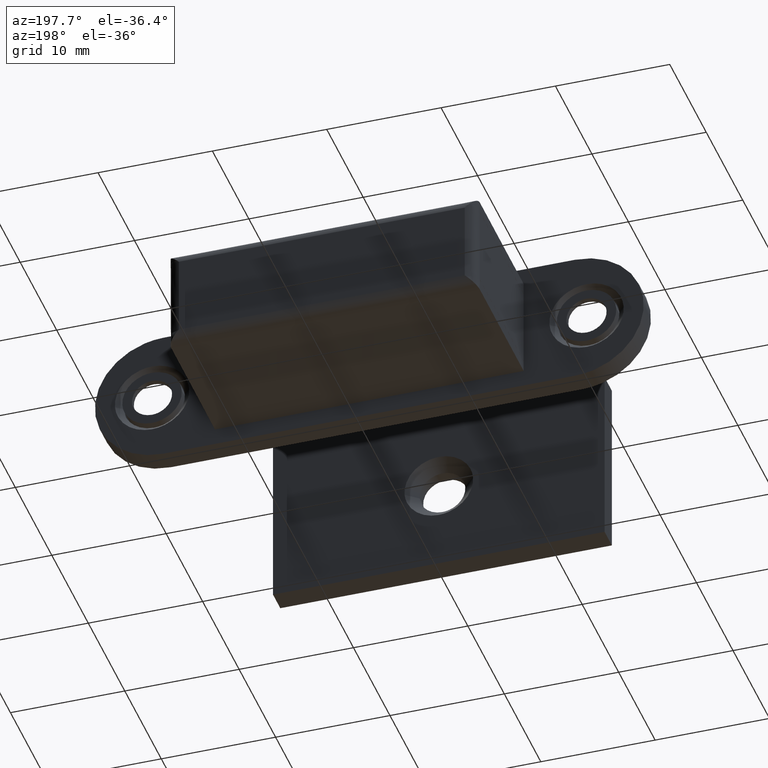
[diagram: clean part render]
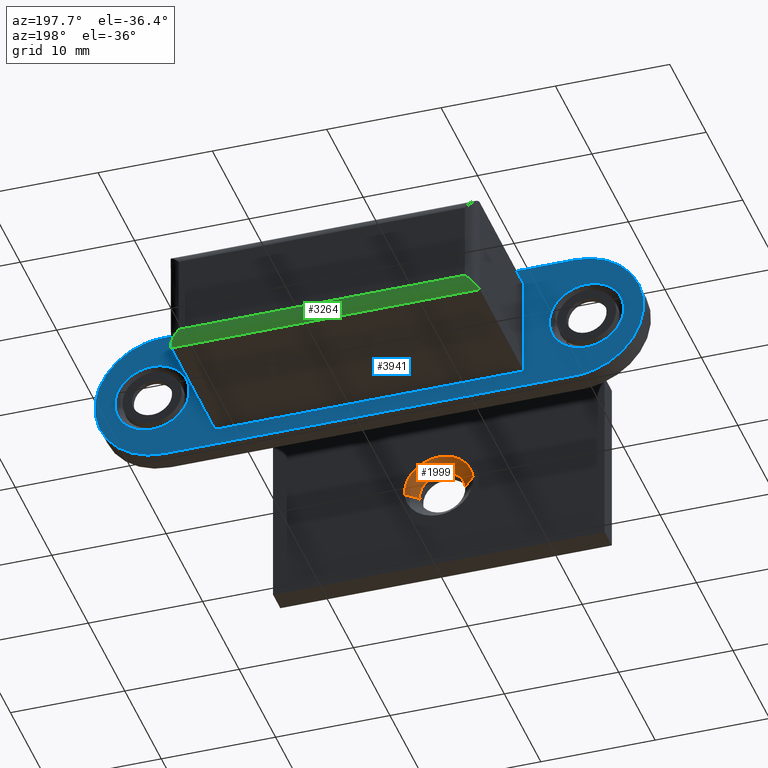
[diagram: same view with three faces highlighted in distinct colors, each labeled with its STEP entity id]
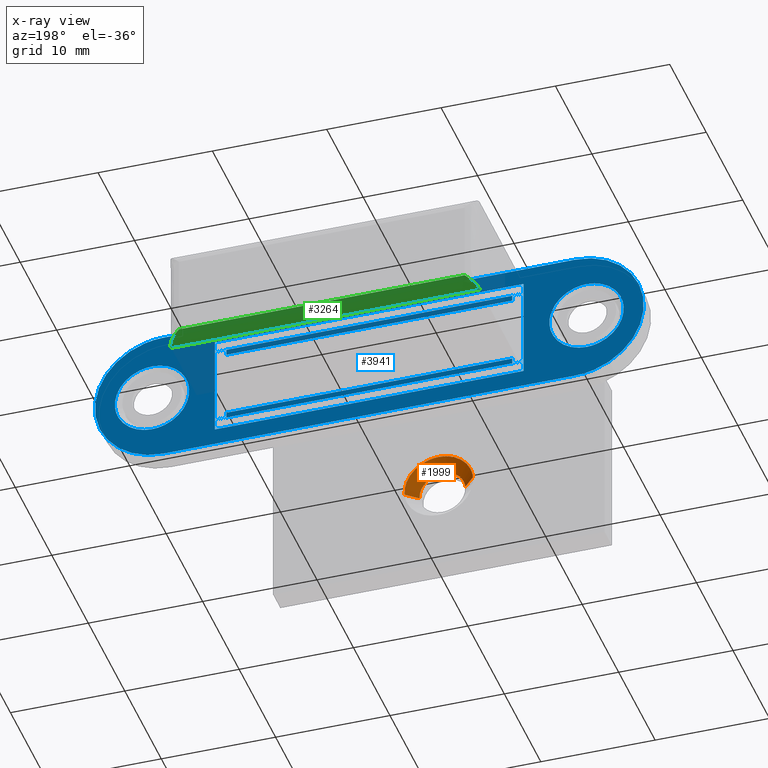
[diagram: x-ray of the same camera — body ghosted, the three highlighted faces saturated]
A machine part, auxiliary view with three faces highlighted in distinct colors.
The next image is the same camera in x-ray (body ghosted, the three faces saturated) — at least one of them is partly hidden behind the body in this view.
Their STEP definitions:

[orange] entity #1999 — the highlighted face is a freeform B-spline surface patch.
#1808=CARTESIAN_POINT('',(1.993834667469721,-33.044645065478193,-0.156918191520466));
#1809=VERTEX_POINT('',#1808);
#1823=CARTESIAN_POINT('',(2.990752001200863,-32.044645065483017,-0.235377287212060));
#1824=VERTEX_POINT('',#1823);
#1825=CARTESIAN_POINT('',(1.993834667469721,-33.044645065478193,-0.156918191520466));
#1826=CARTESIAN_POINT('',(2.990752001200863,-32.044645065483017,-0.235377287212060));
#1827=QUASI_UNIFORM_CURVE('',1,(#1825,#1826),.UNSPECIFIED.,.F.,.U.);
#1828=EDGE_CURVE('',#1809,#1824,#1827,.T.);
#1845=CARTESIAN_POINT('',(-2.990752001200863,-32.044645065483017,0.235377287212021));
#1846=VERTEX_POINT('',#1845);
#1862=CARTESIAN_POINT('',(-1.993834667469720,-33.044645065478193,0.156918191520426));
#1863=VERTEX_POINT('',#1862);
#1864=CARTESIAN_POINT('',(-1.993834667469720,-33.044645065478193,0.156918191520426));
#1865=CARTESIAN_POINT('',(-2.990752001200863,-32.044645065483017,0.235377287212021));
#1866=QUASI_UNIFORM_CURVE('',1,(#1864,#1865),.UNSPECIFIED.,.F.,.U.);
#1867=EDGE_CURVE('',#1863,#1846,#1866,.T.);
#1902=CARTESIAN_POINT('',(-1.968911734122953,-33.069645065486696,0.154956714062477));
#1903=CARTESIAN_POINT('',(-1.813955020060456,-33.069645065486704,2.123868448185431));
#1904=CARTESIAN_POINT('',(0.154956714062497,-33.069645065486696,1.968911734122933));
#1905=CARTESIAN_POINT('',(2.123868448185450,-33.069645065486704,1.813955020060437));
#1906=CARTESIAN_POINT('',(1.968911734122953,-33.069645065486696,-0.154956714062517));
#1907=CARTESIAN_POINT('',(-3.016298007876335,-32.019020065486693,0.237387801511546));
#1908=CARTESIAN_POINT('',(-2.778910206364770,-32.019020065486700,3.253685809387881));
#1909=CARTESIAN_POINT('',(0.237387801511566,-32.019020065486693,3.016298007876316));
#1910=CARTESIAN_POINT('',(3.253685809387900,-32.019020065486700,2.778910206364750));
#1911=CARTESIAN_POINT('',(3.016298007876335,-32.019020065486693,-0.237387801511586));
#1919=(BOUNDED_SURFACE()B_SPLINE_SURFACE(2,1,((#1902,#1907),(#1903,#1908),(#1904,#1909),(#1905,#1910),(#1906,#1911)),.UNSPECIFIED.,.F.,.F.,.U.)B_SPLINE_SURFACE_WITH_KNOTS((3,2,3),(2,2),(0.0,5.013019638620450,10.026039277240899),(0.0,1.0),.UNSPECIFIED.)GEOMETRIC_REPRESENTATION_ITEM()RATIONAL_B_SPLINE_SURFACE(((1.0,1.0),(0.707106781186548,0.707106781186548),(1.0,1.0),(0.707106781186548,0.707106781186548),(1.0,1.0)))REPRESENTATION_ITEM('')SURFACE());
#1920=CARTESIAN_POINT('',(1.996269596839024,-33.044645065486698,-0.122097079147318));
#1921=VERTEX_POINT('',#1920);
#1922=CARTESIAN_POINT('',(1.993834667469722,-33.044645065478193,-0.156918191520466));
#1923=CARTESIAN_POINT('',(1.995204071776316,-33.044645065482449,-0.139518259987268));
#1924=CARTESIAN_POINT('',(1.996269596839024,-33.044645065486698,-0.122097079147318));
#1932=(BOUNDED_CURVE()B_SPLINE_CURVE(2,(#1922,#1923,#1924),.UNSPECIFIED.,.F.,.U.)B_SPLINE_CURVE_WITH_KNOTS((3,3),(0.236331300627257,0.239332962235262),.UNSPECIFIED.)CURVE()GEOMETRIC_REPRESENTATION_ITEM()RATIONAL_B_SPLINE_CURVE((0.969723356160316,0.972855475552449,0.976072041658830))REPRESENTATION_ITEM(''));
#1933=EDGE_CURVE('',#1809,#1921,#1932,.T.);
#1934=ORIENTED_EDGE('',*,*,#1933,.T.);
#1935=CARTESIAN_POINT('',(0.0,-33.044645065486698,2.000000000000016));
#1936=VERTEX_POINT('',#1935);
#1937=CARTESIAN_POINT('',(1.996269596839024,-33.044645065486698,-0.122097079147318));
#1938=CARTESIAN_POINT('',(2.000000000000036,-33.044645065486698,-0.061105526636099));
#1939=CARTESIAN_POINT('',(2.000000000000035,-33.044645065486698,-1.967316E-014));
#1940=CARTESIAN_POINT('',(2.000000000000036,-33.044645065486698,2.000000000000016));
#1941=CARTESIAN_POINT('',(0.0,-33.044645065486698,2.000000000000016));
#1949=(BOUNDED_CURVE()B_SPLINE_CURVE(2,(#1937,#1938,#1939,#1940,#1941),.UNSPECIFIED.,.F.,.U.)B_SPLINE_CURVE_WITH_KNOTS((3,2,3),(0.239332962235262,0.250000000000000,0.500000000000000),.UNSPECIFIED.)CURVE()GEOMETRIC_REPRESENTATION_ITEM()RATIONAL_B_SPLINE_CURVE((0.976072041658830,0.987502787895525,1.0,0.707106781186547,1.0))REPRESENTATION_ITEM(''));
#1950=EDGE_CURVE('',#1921,#1936,#1949,.T.);
#1951=ORIENTED_EDGE('',*,*,#1950,.T.);
#1952=CARTESIAN_POINT('',(0.0,-33.044645065486698,2.000000000000016));
#1953=CARTESIAN_POINT('',(-1.848780983261075,-33.044645065482442,2.000000000000349));
#1954=CARTESIAN_POINT('',(-1.993834667469720,-33.044645065478193,0.156918191520426));
#1962=(BOUNDED_CURVE()B_SPLINE_CURVE(2,(#1952,#1953,#1954),.UNSPECIFIED.,.F.,.U.)B_SPLINE_CURVE_WITH_KNOTS((3,3),(0.500000000000000,0.736331300627257),.UNSPECIFIED.)CURVE()GEOMETRIC_REPRESENTATION_ITEM()RATIONAL_B_SPLINE_CURVE((1.0,0.723120658611652,0.969723356160317))REPRESENTATION_ITEM(''));
#1963=EDGE_CURVE('',#1936,#1863,#1962,.T.);
#1964=ORIENTED_EDGE('',*,*,#1963,.T.);
#1965=ORIENTED_EDGE('',*,*,#1867,.T.);
#1966=CARTESIAN_POINT('',(0.0,-32.044645065486698,3.000000000000016));
#1967=VERTEX_POINT('',#1966);
#1968=CARTESIAN_POINT('',(0.0,-32.044645065486698,3.000000000000016));
#1969=CARTESIAN_POINT('',(-2.773171474950244,-32.044645065484858,3.000000000000159));
#1970=CARTESIAN_POINT('',(-2.990752001200863,-32.044645065483024,0.235377287212021));
#1978=(BOUNDED_CURVE()B_SPLINE_CURVE(2,(#1968,#1969,#1970),.UNSPECIFIED.,.F.,.U.)B_SPLINE_CURVE_WITH_KNOTS((3,3),(0.500000000000000,0.736331300631150),.UNSPECIFIED.)CURVE()GEOMETRIC_REPRESENTATION_ITEM()RATIONAL_B_SPLINE_CURVE((1.0,0.723120658607091,0.969723356168441))REPRESENTATION_ITEM(''));
#1979=EDGE_CURVE('',#1967,#1846,#1978,.T.);
#1980=ORIENTED_EDGE('',*,*,#1979,.F.);
#1981=CARTESIAN_POINT('',(2.990752001200863,-32.044645065483024,-0.235377287212060));
#1982=CARTESIAN_POINT('',(3.000000000003633,-32.044645065483095,-0.117870321037486));
#1983=CARTESIAN_POINT('',(3.000000000003561,-32.044645065483166,-2.968043E-013));
#1984=CARTESIAN_POINT('',(3.000000000001729,-32.044645065485000,2.999999999999882));
#1985=CARTESIAN_POINT('',(0.0,-32.044645065486698,3.000000000000016));
#1993=(BOUNDED_CURVE()B_SPLINE_CURVE(2,(#1981,#1982,#1983,#1984,#1985),.UNSPECIFIED.,.F.,.U.)B_SPLINE_CURVE_WITH_KNOTS((3,2,3),(0.236331300631150,0.250000000000000,0.500000000000000),.UNSPECIFIED.)CURVE()GEOMETRIC_REPRESENTATION_ITEM()RATIONAL_B_SPLINE_CURVE((0.969723356168440,0.983986122579456,1.0,0.707106781186547,1.0))REPRESENTATION_ITEM(''));
#1994=EDGE_CURVE('',#1824,#1967,#1993,.T.);
#1995=ORIENTED_EDGE('',*,*,#1994,.F.);
#1996=ORIENTED_EDGE('',*,*,#1828,.F.);
#1997=EDGE_LOOP('',(#1934,#1951,#1964,#1965,#1980,#1995,#1996));
#1998=FACE_OUTER_BOUND('',#1997,.T.);
#1999=ADVANCED_FACE('',(#1998),#1919,.F.);

[blue] entity #3941 — the highlighted face is a freeform B-spline surface patch.
#2479=CARTESIAN_POINT('',(-15.760014665354641,-12.999999999967690,-0.254992061364810));
#2480=VERTEX_POINT('',#2479);
#2486=CARTESIAN_POINT('',(-18.999995999999999,-13.0,-3.249999999999905));
#2487=VERTEX_POINT('',#2486);
#2488=CARTESIAN_POINT('',(-18.999995999999999,-13.0,-3.249999999999905));
#2489=CARTESIAN_POINT('',(-15.995726902324346,-12.999999999983846,-3.250000000001172));
#2490=CARTESIAN_POINT('',(-15.760014665354639,-12.999999999967683,-0.254992061364810));
#2498=(BOUNDED_CURVE()B_SPLINE_CURVE(2,(#2488,#2489,#2490),.UNSPECIFIED.,.F.,.U.)B_SPLINE_CURVE_WITH_KNOTS((3,3),(0.0,0.236331300619710),.UNSPECIFIED.)CURVE()GEOMETRIC_REPRESENTATION_ITEM()RATIONAL_B_SPLINE_CURVE((1.0,0.723120658620494,0.969723356144566))REPRESENTATION_ITEM(''));
#2499=EDGE_CURVE('',#2487,#2480,#2498,.T.);
#2501=CARTESIAN_POINT('',(-22.239977334645360,-12.999999999967690,0.254992061364810));
#2502=VERTEX_POINT('',#2501);
#2503=CARTESIAN_POINT('',(-22.239977334645364,-12.999999999967683,0.254992061364810));
#2504=CARTESIAN_POINT('',(-22.249996000031540,-12.999999999968269,0.127692847901377));
#2505=CARTESIAN_POINT('',(-22.249996000030901,-12.999999999968910,2.439031E-012));
#2506=CARTESIAN_POINT('',(-22.249996000014793,-12.999999999985066,-3.249999999998734));
#2507=CARTESIAN_POINT('',(-18.999995999999999,-13.0,-3.249999999999905));
#2515=(BOUNDED_CURVE()B_SPLINE_CURVE(2,(#2503,#2504,#2505,#2506,#2507),.UNSPECIFIED.,.F.,.U.)B_SPLINE_CURVE_WITH_KNOTS((3,2,3),(0.736331300619710,0.750000000000000,1.0),.UNSPECIFIED.)CURVE()GEOMETRIC_REPRESENTATION_ITEM()RATIONAL_B_SPLINE_CURVE((0.969723356144566,0.983986122566053,1.0,0.707106781186548,1.0))REPRESENTATION_ITEM(''));
#2516=EDGE_CURVE('',#2502,#2487,#2515,.T.);
#2552=CARTESIAN_POINT('',(-18.999995999999999,-13.0,3.249999999999905));
#2553=VERTEX_POINT('',#2552);
#2554=CARTESIAN_POINT('',(-18.999995999999999,-13.0,3.249999999999905));
#2555=CARTESIAN_POINT('',(-22.004265097675660,-12.999999999983842,3.250000000001173));
#2556=CARTESIAN_POINT('',(-22.239977334645364,-12.999999999967683,0.254992061364810));
#2564=(BOUNDED_CURVE()B_SPLINE_CURVE(2,(#2554,#2555,#2556),.UNSPECIFIED.,.F.,.U.)B_SPLINE_CURVE_WITH_KNOTS((3,3),(0.500000000000000,0.736331300619710),.UNSPECIFIED.)CURVE()GEOMETRIC_REPRESENTATION_ITEM()RATIONAL_B_SPLINE_CURVE((1.0,0.723120658620494,0.969723356144566))REPRESENTATION_ITEM(''));
#2565=EDGE_CURVE('',#2553,#2502,#2564,.T.);
#2567=CARTESIAN_POINT('',(-15.760014665354639,-12.999999999967683,-0.254992061364810));
#2568=CARTESIAN_POINT('',(-15.749995999968466,-12.999999999968267,-0.127692847901377));
#2569=CARTESIAN_POINT('',(-15.749995999969100,-12.999999999968910,-2.439405E-012));
#2570=CARTESIAN_POINT('',(-15.749995999985206,-12.999999999985066,3.249999999998734));
#2571=CARTESIAN_POINT('',(-18.999995999999999,-13.0,3.249999999999905));
#2579=(BOUNDED_CURVE()B_SPLINE_CURVE(2,(#2567,#2568,#2569,#2570,#2571),.UNSPECIFIED.,.F.,.U.)B_SPLINE_CURVE_WITH_KNOTS((3,2,3),(0.236331300619710,0.250000000000000,0.500000000000000),.UNSPECIFIED.)CURVE()GEOMETRIC_REPRESENTATION_ITEM()RATIONAL_B_SPLINE_CURVE((0.969723356144566,0.983986122566053,1.0,0.707106781186548,1.0))REPRESENTATION_ITEM(''));
#2580=EDGE_CURVE('',#2480,#2553,#2579,.T.);
#2791=CARTESIAN_POINT('',(22.239981334645361,-12.999999999967690,-0.254992061364810));
#2792=VERTEX_POINT('',#2791);
#2798=CARTESIAN_POINT('',(19.0,-13.0,-3.249999999999905));
#2799=VERTEX_POINT('',#2798);
#2800=CARTESIAN_POINT('',(19.0,-13.0,-3.249999999999905));
#2801=CARTESIAN_POINT('',(22.004269097675660,-12.999999999983846,-3.250000000001172));
#2802=CARTESIAN_POINT('',(22.239981334645364,-12.999999999967692,-0.254992061364810));
#2810=(BOUNDED_CURVE()B_SPLINE_CURVE(2,(#2800,#2801,#2802),.UNSPECIFIED.,.F.,.U.)B_SPLINE_CURVE_WITH_KNOTS((3,3),(0.0,0.236331300619710),.UNSPECIFIED.)CURVE()GEOMETRIC_REPRESENTATION_ITEM()RATIONAL_B_SPLINE_CURVE((1.0,0.723120658620494,0.969723356144566))REPRESENTATION_ITEM(''));
#2811=EDGE_CURVE('',#2799,#2792,#2810,.T.);
#2813=CARTESIAN_POINT('',(15.760018665354639,-12.999999999967690,0.254992061364810));
#2814=VERTEX_POINT('',#2813);
#2815=CARTESIAN_POINT('',(15.760018665354636,-12.999999999967683,0.254992061364810));
#2816=CARTESIAN_POINT('',(15.749999999968466,-12.999999999968280,0.127692847901377));
#2817=CARTESIAN_POINT('',(15.749999999969100,-12.999999999968910,2.439031E-012));
#2818=CARTESIAN_POINT('',(15.749999999985201,-12.999999999985066,-3.249999999998734));
#2819=CARTESIAN_POINT('',(19.0,-13.0,-3.249999999999905));
#2827=(BOUNDED_CURVE()B_SPLINE_CURVE(2,(#2815,#2816,#2817,#2818,#2819),.UNSPECIFIED.,.F.,.U.)B_SPLINE_CURVE_WITH_KNOTS((3,2,3),(0.736331300619710,0.750000000000000,1.0),.UNSPECIFIED.)CURVE()GEOMETRIC_REPRESENTATION_ITEM()RATIONAL_B_SPLINE_CURVE((0.969723356144566,0.983986122566053,1.0,0.707106781186548,1.0))REPRESENTATION_ITEM(''));
#2828=EDGE_CURVE('',#2814,#2799,#2827,.T.);
#2864=CARTESIAN_POINT('',(19.0,-13.0,3.249999999999905));
#2865=VERTEX_POINT('',#2864);
#2866=CARTESIAN_POINT('',(19.0,-13.0,3.249999999999905));
#2867=CARTESIAN_POINT('',(15.995730902324338,-12.999999999983842,3.250000000001173));
#2868=CARTESIAN_POINT('',(15.760018665354636,-12.999999999967683,0.254992061364810));
#2876=(BOUNDED_CURVE()B_SPLINE_CURVE(2,(#2866,#2867,#2868),.UNSPECIFIED.,.F.,.U.)B_SPLINE_CURVE_WITH_KNOTS((3,3),(0.500000000000000,0.736331300619710),.UNSPECIFIED.)CURVE()GEOMETRIC_REPRESENTATION_ITEM()RATIONAL_B_SPLINE_CURVE((1.0,0.723120658620494,0.969723356144566))REPRESENTATION_ITEM(''));
#2877=EDGE_CURVE('',#2865,#2814,#2876,.T.);
#2879=CARTESIAN_POINT('',(22.239981334645364,-12.999999999967692,-0.254992061364810));
#2880=CARTESIAN_POINT('',(22.250000000031541,-12.999999999968278,-0.127692847901378));
#2881=CARTESIAN_POINT('',(22.250000000030902,-12.999999999968910,-2.439833E-012));
#2882=CARTESIAN_POINT('',(22.250000000014790,-12.999999999985066,3.249999999998734));
#2883=CARTESIAN_POINT('',(19.0,-13.0,3.249999999999905));
#2891=(BOUNDED_CURVE()B_SPLINE_CURVE(2,(#2879,#2880,#2881,#2882,#2883),.UNSPECIFIED.,.F.,.U.)B_SPLINE_CURVE_WITH_KNOTS((3,2,3),(0.236331300619710,0.250000000000000,0.500000000000000),.UNSPECIFIED.)CURVE()GEOMETRIC_REPRESENTATION_ITEM()RATIONAL_B_SPLINE_CURVE((0.969723356144566,0.983986122566053,1.0,0.707106781186548,1.0))REPRESENTATION_ITEM(''));
#2892=EDGE_CURVE('',#2792,#2865,#2891,.T.);
#3060=CARTESIAN_POINT('',(-13.500000000000000,-13.0,3.490000000000000));
#3061=VERTEX_POINT('',#3060);
#3074=CARTESIAN_POINT('',(-13.500000000000000,-13.0,-3.490000000000000));
#3075=VERTEX_POINT('',#3074);
#3081=CARTESIAN_POINT('',(-13.500000000000000,-13.0,-3.490000000000000));
#3082=CARTESIAN_POINT('',(-13.500000000000000,-13.0,3.490000000000000));
#3083=QUASI_UNIFORM_CURVE('',1,(#3081,#3082),.UNSPECIFIED.,.F.,.U.);
#3084=EDGE_CURVE('',#3075,#3061,#3083,.T.);
#3094=CARTESIAN_POINT('',(-13.500000000000000,-13.0,4.500000000000000));
#3095=VERTEX_POINT('',#3094);
#3110=CARTESIAN_POINT('',(-13.500000000000000,-13.0,3.500000000000000));
#3111=VERTEX_POINT('',#3110);
#3117=CARTESIAN_POINT('',(-13.500000000000000,-13.0,3.500000000000000));
#3118=CARTESIAN_POINT('',(-13.500000000000000,-13.0,4.500000000000000));
#3119=QUASI_UNIFORM_CURVE('',1,(#3117,#3118),.UNSPECIFIED.,.F.,.U.);
#3120=EDGE_CURVE('',#3111,#3095,#3119,.T.);
#3130=CARTESIAN_POINT('',(13.499995999999960,-13.0,-3.490000000000000));
#3131=VERTEX_POINT('',#3130);
#3146=CARTESIAN_POINT('',(13.499995999999960,-13.0,3.490000000000000));
#3147=VERTEX_POINT('',#3146);
#3153=CARTESIAN_POINT('',(13.499995999999960,-13.0,-3.490000000000000));
#3154=CARTESIAN_POINT('',(13.499995999999960,-13.0,3.490000000000000));
#3155=QUASI_UNIFORM_CURVE('',1,(#3153,#3154),.UNSPECIFIED.,.F.,.U.);
#3156=EDGE_CURVE('',#3131,#3147,#3155,.T.);
#3354=CARTESIAN_POINT('',(12.499995999999960,-13.0,3.490000000000000));
#3355=VERTEX_POINT('',#3354);
#3356=CARTESIAN_POINT('',(13.499995999999960,-13.0,3.490000000000000));
#3357=CARTESIAN_POINT('',(12.499995999999960,-13.0,3.490000000000000));
#3358=QUASI_UNIFORM_CURVE('',1,(#3356,#3357),.UNSPECIFIED.,.F.,.U.);
#3359=EDGE_CURVE('',#3147,#3355,#3358,.T.);
#3382=CARTESIAN_POINT('',(-12.500000000000000,-13.0,3.490000000000000));
#3383=VERTEX_POINT('',#3382);
#3397=CARTESIAN_POINT('',(-12.500000000000000,-13.0,3.490000000000000));
#3398=CARTESIAN_POINT('',(-13.500000000000000,-13.0,3.490000000000000));
#3399=QUASI_UNIFORM_CURVE('',1,(#3397,#3398),.UNSPECIFIED.,.F.,.U.);
#3400=EDGE_CURVE('',#3383,#3061,#3399,.T.);
#3418=CARTESIAN_POINT('',(12.499995999999960,-13.0,-3.490000000000000));
#3419=VERTEX_POINT('',#3418);
#3420=CARTESIAN_POINT('',(13.499995999999960,-13.0,-3.490000000000000));
#3421=CARTESIAN_POINT('',(12.499995999999960,-13.0,-3.490000000000000));
#3422=QUASI_UNIFORM_CURVE('',1,(#3420,#3421),.UNSPECIFIED.,.F.,.U.);
#3423=EDGE_CURVE('',#3131,#3419,#3422,.T.);
#3440=CARTESIAN_POINT('',(-12.500000000000000,-13.0,-3.490000000000000));
#3441=VERTEX_POINT('',#3440);
#3447=CARTESIAN_POINT('',(-12.500000000000000,-13.0,-3.490000000000000));
#3448=CARTESIAN_POINT('',(-13.500000000000000,-13.0,-3.490000000000000));
#3449=QUASI_UNIFORM_CURVE('',1,(#3447,#3448),.UNSPECIFIED.,.F.,.U.);
#3450=EDGE_CURVE('',#3441,#3075,#3449,.T.);
#3467=CARTESIAN_POINT('',(-12.500000000000000,-13.0,2.999992000000000));
#3468=VERTEX_POINT('',#3467);
#3469=CARTESIAN_POINT('',(-12.500000000000000,-13.0,3.490000000000000));
#3470=CARTESIAN_POINT('',(-12.500000000000000,-13.0,2.999992000000000));
#3471=QUASI_UNIFORM_CURVE('',1,(#3469,#3470),.UNSPECIFIED.,.F.,.U.);
#3472=EDGE_CURVE('',#3383,#3468,#3471,.T.);
#3480=CARTESIAN_POINT('',(-12.500000000000000,-13.0,-2.999992000000000));
#3481=VERTEX_POINT('',#3480);
#3487=CARTESIAN_POINT('',(-12.500000000000000,-13.0,-2.999992000000000));
#3488=CARTESIAN_POINT('',(-12.500000000000000,-13.0,-3.490000000000000));
#3489=QUASI_UNIFORM_CURVE('',1,(#3487,#3488),.UNSPECIFIED.,.F.,.U.);
#3490=EDGE_CURVE('',#3481,#3441,#3489,.T.);
#3506=CARTESIAN_POINT('',(12.499995999999960,-13.0,2.999992000000000));
#3507=VERTEX_POINT('',#3506);
#3508=CARTESIAN_POINT('',(12.499995999999960,-13.0,3.490000000000000));
#3509=CARTESIAN_POINT('',(12.499995999999960,-13.0,2.999992000000000));
#3510=QUASI_UNIFORM_CURVE('',1,(#3508,#3509),.UNSPECIFIED.,.F.,.U.);
#3511=EDGE_CURVE('',#3355,#3507,#3510,.T.);
#3520=CARTESIAN_POINT('',(12.499995999999960,-13.0,-2.999992000000000));
#3521=VERTEX_POINT('',#3520);
#3522=CARTESIAN_POINT('',(12.499995999999960,-13.0,-2.999992000000000));
#3523=CARTESIAN_POINT('',(12.499995999999960,-13.0,-3.490000000000000));
#3524=QUASI_UNIFORM_CURVE('',1,(#3522,#3523),.UNSPECIFIED.,.F.,.U.);
#3525=EDGE_CURVE('',#3521,#3419,#3524,.T.);
#3549=CARTESIAN_POINT('',(12.499995999999960,-13.0,-2.999992000000000));
#3550=CARTESIAN_POINT('',(-12.500000000000000,-13.0,-2.999992000000000));
#3551=QUASI_UNIFORM_CURVE('',1,(#3549,#3550),.UNSPECIFIED.,.F.,.U.);
#3552=EDGE_CURVE('',#3521,#3481,#3551,.T.);
#3563=CARTESIAN_POINT('',(12.499995999999960,-13.0,2.999992000000000));
#3564=CARTESIAN_POINT('',(-12.500000000000000,-13.0,2.999992000000000));
#3565=QUASI_UNIFORM_CURVE('',1,(#3563,#3564),.UNSPECIFIED.,.F.,.U.);
#3566=EDGE_CURVE('',#3507,#3468,#3565,.T.);
#3578=CARTESIAN_POINT('',(13.499995999999999,-13.0,3.500000000000000));
#3579=VERTEX_POINT('',#3578);
#3580=CARTESIAN_POINT('',(13.499995999999999,-13.0,3.500000000000000));
#3581=CARTESIAN_POINT('',(-13.500000000000000,-13.0,3.500000000000000));
#3582=QUASI_UNIFORM_CURVE('',1,(#3580,#3581),.UNSPECIFIED.,.F.,.U.);
#3583=EDGE_CURVE('',#3579,#3111,#3582,.T.);
#3629=CARTESIAN_POINT('',(-13.500000000000000,-13.0,-3.500000000000000));
#3630=VERTEX_POINT('',#3629);
#3636=CARTESIAN_POINT('',(13.499995999999999,-13.0,-3.500000000000000));
#3637=VERTEX_POINT('',#3636);
#3638=CARTESIAN_POINT('',(13.499995999999999,-13.0,-3.500000000000000));
#3639=CARTESIAN_POINT('',(-13.500000000000000,-13.0,-3.500000000000000));
#3640=QUASI_UNIFORM_CURVE('',1,(#3638,#3639),.UNSPECIFIED.,.F.,.U.);
#3641=EDGE_CURVE('',#3637,#3630,#3640,.T.);
#3658=CARTESIAN_POINT('',(-13.500000000000000,-13.0,-4.500000000000000));
#3659=VERTEX_POINT('',#3658);
#3665=CARTESIAN_POINT('',(-13.500000000000000,-13.0,-4.500000000000000));
#3666=CARTESIAN_POINT('',(-13.500000000000000,-13.0,-3.500000000000000));
#3667=QUASI_UNIFORM_CURVE('',1,(#3665,#3666),.UNSPECIFIED.,.F.,.U.);
#3668=EDGE_CURVE('',#3659,#3630,#3667,.T.);
#3680=CARTESIAN_POINT('',(13.499995999999960,-13.0,4.500000000000000));
#3681=VERTEX_POINT('',#3680);
#3687=CARTESIAN_POINT('',(13.499995999999999,-13.0,3.500000000000000));
#3688=CARTESIAN_POINT('',(13.499995999999960,-13.0,4.500000000000000));
#3689=QUASI_UNIFORM_CURVE('',1,(#3687,#3688),.UNSPECIFIED.,.F.,.U.);
#3690=EDGE_CURVE('',#3579,#3681,#3689,.T.);
#3702=CARTESIAN_POINT('',(13.499995999999960,-13.0,-4.500000000000000));
#3703=VERTEX_POINT('',#3702);
#3709=CARTESIAN_POINT('',(13.499995999999960,-13.0,-4.500000000000000));
#3710=CARTESIAN_POINT('',(-13.500000000000000,-13.0,-4.500000000000000));
#3711=QUASI_UNIFORM_CURVE('',1,(#3709,#3710),.UNSPECIFIED.,.F.,.U.);
#3712=EDGE_CURVE('',#3703,#3659,#3711,.T.);
#3725=CARTESIAN_POINT('',(13.499995999999960,-13.0,4.500000000000000));
#3726=CARTESIAN_POINT('',(-13.500000000000000,-13.0,4.500000000000000));
#3727=QUASI_UNIFORM_CURVE('',1,(#3725,#3726),.UNSPECIFIED.,.F.,.U.);
#3728=EDGE_CURVE('',#3681,#3095,#3727,.T.);
#3739=CARTESIAN_POINT('',(18.009793955705899,-13.000000000000121,5.999992000000000));
#3740=VERTEX_POINT('',#3739);
#3746=CARTESIAN_POINT('',(-18.0,-13.000000000000121,5.999992000000000));
#3747=VERTEX_POINT('',#3746);
#3748=CARTESIAN_POINT('',(18.009793955705899,-13.000000000000121,5.999992000000000));
#3749=CARTESIAN_POINT('',(-18.0,-13.000000000000121,5.999992000000000));
#3750=QUASI_UNIFORM_CURVE('',1,(#3748,#3749),.UNSPECIFIED.,.F.,.U.);
#3751=EDGE_CURVE('',#3740,#3747,#3750,.T.);
#3780=CARTESIAN_POINT('',(17.999995999999999,-13.000000000000121,-6.0));
#3781=VERTEX_POINT('',#3780);
#3787=CARTESIAN_POINT('',(17.999995999999999,-13.000000000000121,-6.0));
#3788=CARTESIAN_POINT('',(18.331158196208879,-13.000000000000130,-6.000013056471667));
#3789=CARTESIAN_POINT('',(19.091626246783971,-13.000000000000069,-5.936930999084340));
#3790=CARTESIAN_POINT('',(20.041985150563139,-13.000000000000229,-5.670949496446402));
#3791=CARTESIAN_POINT('',(20.977573473466862,-12.999999999999980,-5.235669892544693));
#3792=CARTESIAN_POINT('',(21.778465967564699,-13.000000000000250,-4.704475845025820));
#3793=CARTESIAN_POINT('',(22.468211270832871,-13.000000000000190,-4.036037982070637));
#3794=CARTESIAN_POINT('',(23.090986449533141,-13.000000000000011,-3.228728479545149));
#3795=CARTESIAN_POINT('',(23.568499757414060,-12.999999999999870,-2.336577575292398));
#3796=CARTESIAN_POINT('',(23.869273648998941,-13.000000000000410,-1.347166880006129));
#3797=CARTESIAN_POINT('',(23.992476056716949,-12.999999999999620,-0.520695879928098));
#3798=CARTESIAN_POINT('',(24.012104461515211,-13.000000000001140,0.253214947687136));
#3799=CARTESIAN_POINT('',(23.916711902969841,-12.999999999999570,1.145731914414290));
#3800=CARTESIAN_POINT('',(23.648279258994119,-13.000000000000270,2.119445591254396));
#3801=CARTESIAN_POINT('',(23.182330108386509,-13.000000000000311,3.084154410684288));
#3802=CARTESIAN_POINT('',(22.649500720010298,-13.000000000000430,3.823074696943106));
#3803=CARTESIAN_POINT('',(22.021563651043820,-13.000000000000011,4.480173293843522));
#3804=CARTESIAN_POINT('',(21.334670365625499,-13.000000000000140,5.021072329580870));
#3805=CARTESIAN_POINT('',(20.450113297384320,-13.000000000000080,5.505955382702045));
#3806=CARTESIAN_POINT('',(19.358749678027731,-13.000000000000290,5.890751496588891));
#3807=CARTESIAN_POINT('',(18.512681898914710,-12.999999999999741,5.999299715809802));
#3808=CARTESIAN_POINT('',(18.009793955705899,-13.000000000000121,5.999992000000000));
#3809=B_SPLINE_CURVE_WITH_KNOTS('',3,(#3787,#3788,#3789,#3790,#3791,#3792,#3793,#3794,#3795,#3796,#3797,#3798,#3799,#3800,#3801,#3802,#3803,#3804,#3805,#3806,#3807,#3808),.UNSPECIFIED.,.F.,.U.,(4,1,1,1,1,1,1,1,1,1,1,1,1,1,1,1,1,1,1,4),(0.000000102261588,0.993494156851945,2.281373765471511,2.943705251361775,4.084407999190262,5.151509312597286,5.813847171621566,7.138536118183971,8.168842445534811,8.904761812479643,9.640639543127548,10.486966130734260,11.590868644334069,12.657978959328590,13.688280658021050,14.313824286125829,15.380930425689479,16.300848851290780,17.331156312904291,18.839787484887111),.UNSPECIFIED.);
#3810=EDGE_CURVE('',#3781,#3740,#3809,.T.);
#3822=CARTESIAN_POINT('',(-18.0,-13.000000000000121,-6.0));
#3823=VERTEX_POINT('',#3822);
#3829=CARTESIAN_POINT('',(-18.0,-13.000000000000121,-6.0));
#3830=CARTESIAN_POINT('',(17.999995999999999,-13.000000000000121,-6.0));
#3831=QUASI_UNIFORM_CURVE('',1,(#3829,#3830),.UNSPECIFIED.,.F.,.U.);
#3832=EDGE_CURVE('',#3823,#3781,#3831,.T.);
#3858=CARTESIAN_POINT('',(-18.0,-13.000000000000121,5.999992000000000));
#3859=CARTESIAN_POINT('',(-18.380425402938581,-13.000000000000069,6.000040072763278));
#3860=CARTESIAN_POINT('',(-18.981717134804001,-13.000000000000171,5.942598565535732));
#3861=CARTESIAN_POINT('',(-19.887810320726960,-13.000000000000130,5.715644405945271));
#3862=CARTESIAN_POINT('',(-20.538723301127700,-13.000000000000030,5.453028769280708));
#3863=CARTESIAN_POINT('',(-21.270302430864380,-13.000000000000250,5.050376269722984));
#3864=CARTESIAN_POINT('',(-21.868081032645929,-12.999999999999959,4.615504391272524));
#3865=CARTESIAN_POINT('',(-22.578629249122621,-13.000000000000201,3.917932434189908));
#3866=CARTESIAN_POINT('',(-23.105492297140358,-12.999999999999931,3.202998258948178));
#3867=CARTESIAN_POINT('',(-23.508298408802791,-13.000000000000441,2.414700198343717));
#3868=CARTESIAN_POINT('',(-23.771660306665161,-13.000000000000030,1.699498752739190));
#3869=CARTESIAN_POINT('',(-23.960203124533621,-12.999999999999931,0.871844063870829));
#3870=CARTESIAN_POINT('',(-24.033168894989409,-13.000000000000741,-0.159959139877689));
#3871=CARTESIAN_POINT('',(-23.909745505366541,-12.999999999999851,-1.213863528388597));
#3872=CARTESIAN_POINT('',(-23.570487142617051,-13.000000000000060,-2.319980057723179));
#3873=CARTESIAN_POINT('',(-23.084507055037630,-13.000000000000529,-3.249752143379336));
#3874=CARTESIAN_POINT('',(-22.506676006621259,-13.000000000000551,-3.985370017225565));
#3875=CARTESIAN_POINT('',(-21.912287385373599,-12.999999999999920,-4.572531650234788));
#3876=CARTESIAN_POINT('',(-21.303273242937468,-13.000000000000201,-5.032946687534240));
#3877=CARTESIAN_POINT('',(-20.421698578950050,-12.999999999999989,-5.521752964597688));
#3878=CARTESIAN_POINT('',(-19.349871073520401,-13.000000000000499,-5.897843202301757));
#3879=CARTESIAN_POINT('',(-18.454059181050091,-12.999999999999829,-6.000085915191937));
#3880=CARTESIAN_POINT('',(-18.0,-13.000000000000121,-6.0));
#3881=B_SPLINE_CURVE_WITH_KNOTS('',3,(#3858,#3859,#3860,#3861,#3862,#3863,#3864,#3865,#3866,#3867,#3868,#3869,#3870,#3871,#3872,#3873,#3874,#3875,#3876,#3877,#3878,#3879,#3880),.UNSPECIFIED.,.F.,.U.,(4,1,1,1,1,1,1,1,1,1,1,1,1,1,1,1,1,1,1,1,4),(0.000000102820071,1.141265980022673,1.803938014038717,2.797972260066683,3.239759918716336,4.307423587509424,5.006923243985526,6.221849266609562,6.958154625383790,7.657645102187871,8.504429810328039,9.498403104321215,10.750141137975850,11.670522752344541,12.959080709809079,13.879474724092789,14.468525948223000,15.462555187383829,16.162059631699488,17.487415283588469,18.849579207839099),.UNSPECIFIED.);
#3882=EDGE_CURVE('',#3747,#3823,#3881,.T.);
#3888=CARTESIAN_POINT('',(-26.397599607293039,-13.0,6.599391577141688));
#3889=CARTESIAN_POINT('',(26.397594895281252,-13.0,6.599391577141688));
#3890=CARTESIAN_POINT('',(-26.397599607293039,-13.0,-6.599399899006555));
#3891=CARTESIAN_POINT('',(26.397594895281252,-13.0,-6.599399899006555));
#3892=B_SPLINE_SURFACE_WITH_KNOTS('',1,1,((#3888,#3890),(#3889,#3891)),.UNSPECIFIED.,.F.,.F.,.U.,(2,2),(2,2),(0.0,52.795194502574290),(0.0,13.198791476148241),.UNSPECIFIED.);
#3893=ORIENTED_EDGE('',*,*,#3882,.F.);
#3894=ORIENTED_EDGE('',*,*,#3751,.F.);
#3895=ORIENTED_EDGE('',*,*,#3810,.F.);
#3896=ORIENTED_EDGE('',*,*,#3832,.F.);
#3897=EDGE_LOOP('',(#3893,#3894,#3895,#3896));
#3898=FACE_OUTER_BOUND('',#3897,.T.);
#3899=CARTESIAN_POINT('',(13.499995999999960,-13.0,-4.500000000000000));
#3900=CARTESIAN_POINT('',(13.499995999999999,-13.0,-3.500000000000000));
#3901=QUASI_UNIFORM_CURVE('',1,(#3899,#3900),.UNSPECIFIED.,.F.,.U.);
#3902=EDGE_CURVE('',#3703,#3637,#3901,.T.);
#3903=ORIENTED_EDGE('',*,*,#3902,.T.);
#3904=ORIENTED_EDGE('',*,*,#3641,.T.);
#3905=ORIENTED_EDGE('',*,*,#3668,.F.);
#3906=ORIENTED_EDGE('',*,*,#3712,.F.);
#3907=EDGE_LOOP('',(#3903,#3904,#3905,#3906));
#3908=FACE_BOUND('',#3907,.T.);
#3909=ORIENTED_EDGE('',*,*,#3156,.T.);
#3910=ORIENTED_EDGE('',*,*,#3359,.T.);
#3911=ORIENTED_EDGE('',*,*,#3511,.T.);
#3912=ORIENTED_EDGE('',*,*,#3566,.T.);
#3913=ORIENTED_EDGE('',*,*,#3472,.F.);
#3914=ORIENTED_EDGE('',*,*,#3400,.T.);
#3915=ORIENTED_EDGE('',*,*,#3084,.F.);
#3916=ORIENTED_EDGE('',*,*,#3450,.F.);
#3917=ORIENTED_EDGE('',*,*,#3490,.F.);
#3918=ORIENTED_EDGE('',*,*,#3552,.F.);
#3919=ORIENTED_EDGE('',*,*,#3525,.T.);
#3920=ORIENTED_EDGE('',*,*,#3423,.F.);
#3921=EDGE_LOOP('',(#3909,#3910,#3911,#3912,#3913,#3914,#3915,#3916,#3917,#3918,#3919,#3920));
#3922=FACE_BOUND('',#3921,.T.);
#3923=ORIENTED_EDGE('',*,*,#3120,.F.);
#3924=ORIENTED_EDGE('',*,*,#3583,.F.);
#3925=ORIENTED_EDGE('',*,*,#3690,.T.);
#3926=ORIENTED_EDGE('',*,*,#3728,.T.);
#3927=EDGE_LOOP('',(#3923,#3924,#3925,#3926));
#3928=FACE_BOUND('',#3927,.T.);
#3929=ORIENTED_EDGE('',*,*,#2877,.T.);
#3930=ORIENTED_EDGE('',*,*,#2828,.T.);
#3931=ORIENTED_EDGE('',*,*,#2811,.T.);
#3932=ORIENTED_EDGE('',*,*,#2892,.T.);
#3933=EDGE_LOOP('',(#3929,#3930,#3931,#3932));
#3934=FACE_BOUND('',#3933,.T.);
#3935=ORIENTED_EDGE('',*,*,#2565,.T.);
#3936=ORIENTED_EDGE('',*,*,#2516,.T.);
#3937=ORIENTED_EDGE('',*,*,#2499,.T.);
#3938=ORIENTED_EDGE('',*,*,#2580,.T.);
#3939=EDGE_LOOP('',(#3935,#3936,#3937,#3938));
#3940=FACE_BOUND('',#3939,.T.);
#3941=ADVANCED_FACE('',(#3898,#3908,#3922,#3928,#3934,#3940),#3892,.T.);

[green] entity #3264 — the highlighted face is a freeform B-spline surface patch.
#2905=CARTESIAN_POINT('',(12.499995999999960,0.0,-3.500000000000000));
#2906=VERTEX_POINT('',#2905);
#2912=CARTESIAN_POINT('',(-12.500000000000000,0.0,-3.500000000000000));
#2913=VERTEX_POINT('',#2912);
#2914=CARTESIAN_POINT('',(12.499995999999960,0.0,-3.500000000000000));
#2915=CARTESIAN_POINT('',(-12.500000000000000,0.0,-3.500000000000000));
#2916=QUASI_UNIFORM_CURVE('',1,(#2914,#2915),.UNSPECIFIED.,.F.,.U.);
#2917=EDGE_CURVE('',#2906,#2913,#2916,.T.);
#3189=CARTESIAN_POINT('',(-13.500000000000000,-1.0,-4.500000000000000));
#3190=VERTEX_POINT('',#3189);
#3191=CARTESIAN_POINT('',(-12.500000000000000,0.0,-3.500000000000000));
#3192=CARTESIAN_POINT('',(-13.500000000000000,0.0,-4.500000000000000));
#3193=CARTESIAN_POINT('',(-13.500000000000000,-1.000000000000000,-4.500000000000000));
#3201=(BOUNDED_CURVE()B_SPLINE_CURVE(2,(#3191,#3192,#3193),.UNSPECIFIED.,.F.,.U.)CURVE()GEOMETRIC_REPRESENTATION_ITEM()QUASI_UNIFORM_CURVE()RATIONAL_B_SPLINE_CURVE((1.0,0.707106781186547,1.0))REPRESENTATION_ITEM(''));
#3202=EDGE_CURVE('',#2913,#3190,#3201,.T.);
#3226=CARTESIAN_POINT('',(14.174995900000001,-1.026176948307874,-4.499657324975557));
#3227=CARTESIAN_POINT('',(-14.191874897500000,-1.026176948307874,-4.499657324975557));
#3228=CARTESIAN_POINT('',(14.174995899999999,0.074984800554719,-4.528492260166261));
#3229=CARTESIAN_POINT('',(-14.191874897500000,0.074984800554719,-4.528492260166261));
#3230=CARTESIAN_POINT('',(14.174995900000003,-0.002475520619191,-3.429679924374016));
#3231=CARTESIAN_POINT('',(-14.191874897500002,-0.002475520619191,-3.429679924374016));
#3239=(BOUNDED_SURFACE()B_SPLINE_SURFACE(1,2,((#3226,#3228,#3230),(#3227,#3229,#3231)),.UNSPECIFIED.,.F.,.F.,.U.)B_SPLINE_SURFACE_WITH_KNOTS((2,2),(3,3),(0.0,28.366870797500010),(0.0,0.994518632334191),.UNSPECIFIED.)GEOMETRIC_REPRESENTATION_ITEM()RATIONAL_B_SPLINE_SURFACE(((1.0,0.670944223154768,0.996392648609106),(1.0,0.670944223154768,0.996392648609106)))REPRESENTATION_ITEM('')SURFACE());
#3240=CARTESIAN_POINT('',(13.499995999999999,-1.0,-4.500000000000000));
#3241=VERTEX_POINT('',#3240);
#3242=CARTESIAN_POINT('',(12.499995999999960,0.0,-3.500000000000000));
#3243=CARTESIAN_POINT('',(13.499995999999957,0.0,-4.500000000000000));
#3244=CARTESIAN_POINT('',(13.499995999999960,-1.000000000000000,-4.500000000000000));
#3252=(BOUNDED_CURVE()B_SPLINE_CURVE(2,(#3242,#3243,#3244),.UNSPECIFIED.,.F.,.U.)CURVE()GEOMETRIC_REPRESENTATION_ITEM()QUASI_UNIFORM_CURVE()RATIONAL_B_SPLINE_CURVE((1.0,0.707106781186547,1.0))REPRESENTATION_ITEM(''));
#3253=EDGE_CURVE('',#2906,#3241,#3252,.T.);
#3254=ORIENTED_EDGE('',*,*,#3253,.T.);
#3255=CARTESIAN_POINT('',(-13.500000000000000,-1.0,-4.500000000000000));
#3256=CARTESIAN_POINT('',(13.499995999999999,-1.0,-4.500000000000000));
#3257=QUASI_UNIFORM_CURVE('',1,(#3255,#3256),.UNSPECIFIED.,.F.,.U.);
#3258=EDGE_CURVE('',#3190,#3241,#3257,.T.);
#3259=ORIENTED_EDGE('',*,*,#3258,.F.);
#3260=ORIENTED_EDGE('',*,*,#3202,.F.);
#3261=ORIENTED_EDGE('',*,*,#2917,.F.);
#3262=EDGE_LOOP('',(#3254,#3259,#3260,#3261));
#3263=FACE_OUTER_BOUND('',#3262,.T.);
#3264=ADVANCED_FACE('',(#3263),#3239,.T.);